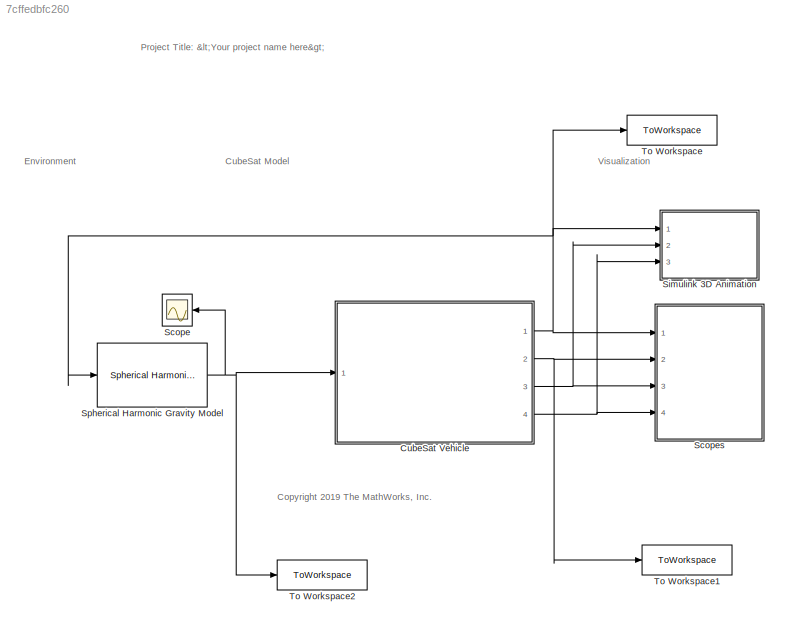
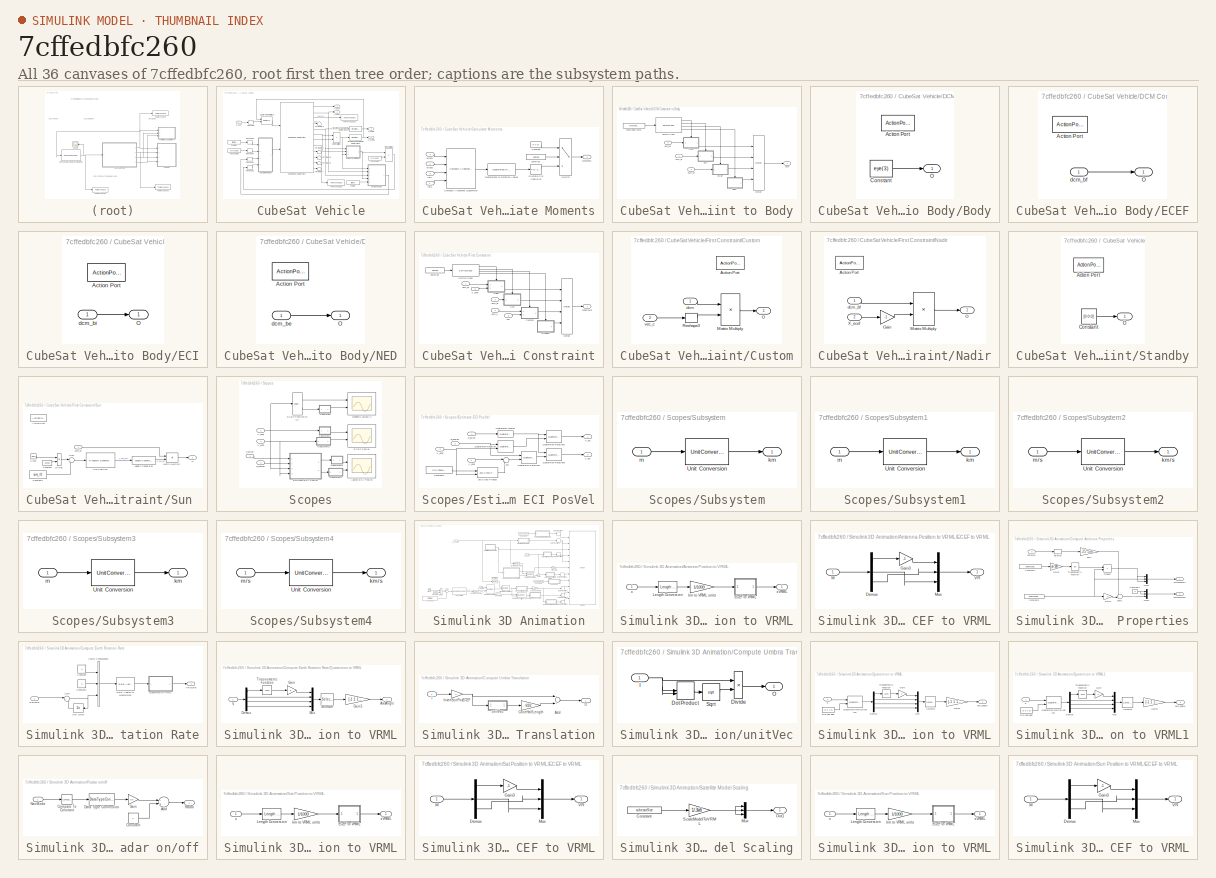
[diagram: thumbnail index - all 36 canvases of the model, root first then tree order]
MODEL slx_7cffedbfc260
KIND model
CONFIG AbsTol = auto
CONFIG EnableMultiTasking = off
CONFIG FixedStep = dT
CONFIG InitFcn = if strcmp(get_param([bdroot(gcs) '/Simulink 3D Animation'], 'enableVis'), 'on')\n    if ~builtin('license','checkout','Virtual_Reality_Toolbox')\n        error(message('aeroblks_cubesat:cubesat:licenseFailAnimTemplate'));\n    end\nend
CONFIG MaxStep = auto
CONFIG MinStep = auto
CONFIG PostLoadFcn = if builtin('license','test','Virtual_Reality_Toolbox')\n    set_param([bdroot(gcs) '/Simulink 3D Animation'], 'enableVis', 'on')\nelse\n    set_param([bdroot(gcs) '/Simulink 3D Animation'], 'enableVis', 'off')\nend
CONFIG RelTol = 1e-5
CONFIG SampleTimeConstraint = Unconstrained
CONFIG Solver = FixedStepAuto
CONFIG SolverName = FixedStepAuto
CONFIG StartTime = 0.0
CONFIG StopTime = 5
WORKSPACE source: MATLAB code (in-file) + mxarray member
WORKSPACE code: initialize6DOFSkyHogg;
WORKSPACE aeroCoeff: object (value not decoded)
WORKSPACE environment: EarthRefAlt (value not decoded)
WORKSPACE initCond: object (value not decoded)
WORKSPACE inputs0: object (value not decoded)
WORKSPACE states0: object (value not decoded)
WORKSPACE vehicle: object (value not decoded)
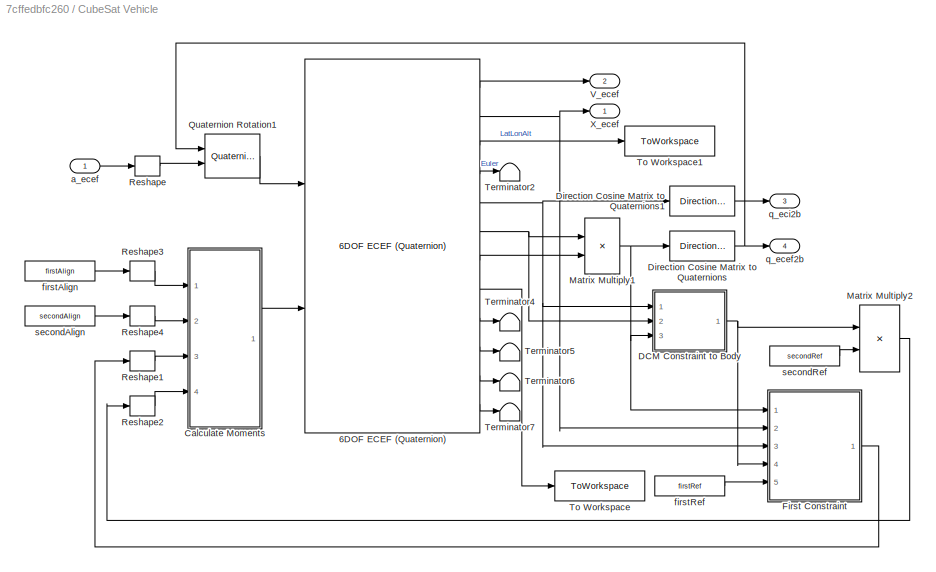
BLOCK [SubSystem] CubeSat Vehicle
  AncestorBlock = asbCubeSatBlockLib/CubeSat Vehicle
  AttributesFormatString = %<pointingMode>
  BlockKeywords = __PRM__SERIALIZED__DATA__:cube sat,cube sat vehicle,satellite,nanosat,nano sat,nanosatellite,nano satellite,pico sat,picosat,pico satellite,picosatellite,orbit propagator,orbit propagation,orbital propagator,orbital dynamics,astrodynamics,astro dynamics,spacecraft,space craft,space vehicle,spaceflight,space flight,low Earth orbit,low-Earth orbit,attitude control,kepler,keplerian elements,orbital e...<+45ch>
  Ports = [1, 4]
  RequestExecContextInheritance = off
BLOCK [Reference] CubeSat Vehicle/6DOF ECEF (Quaternion)  REF=aerolib6dof2/6DOF ECEF (Quaternion)
  Ports = [2, 12]
  SourceBlock = aerolib6dof2/6DOF ECEF (Quaternion)
  SourceProductBaseCode = AE
  SourceProductName = Aerospace Blockset
  SourceType = 6DOF EoM (ECEF)
BLOCK [SubSystem] CubeSat Vehicle/Calculate Moments
  Ports = [4, 1]
  RequestExecContextInheritance = off
BLOCK [Reference] CubeSat Vehicle/Calculate Moments/Compute Alignment Quaternion  REF=asbCubeSatBlockLib/Axes Transformations/Attitude Conversion/Compute Alignment Quaternion
  Ports = [4, 1]
  SourceBlock = asbCubeSatBlockLib/Axes Transformations/Attitude Conversion/Compute Alignment Quaternion
  SourceProductBaseCode = AERO_CUBESAT
  SourceProductName = Aerospace Blockset CubeSat Simulation Library
  SourceType = SubSystem
BLOCK [Constant] CubeSat Vehicle/Calculate Moments/Constant
  OutDataTypeStr = Inherit: Inherit via back propagation
  Value = [0 0 0]'
BLOCK [Reference] CubeSat Vehicle/Calculate Moments/Discrete PID Controller  REF=simulink/Continuous/PID Controller
  Ports = [1, 1]
  SourceBlock = simulink/Continuous/PID Controller
  SourceProductBaseCode = SL
  SourceProductName = Simulink
  SourceType = PID 1dof
BLOCK [Outport] CubeSat Vehicle/Calculate Moments/Moments
  IconDisplay = Port number
  VectorParamsAs1DForOutWhenUnconnected = off
BLOCK [Reference] CubeSat Vehicle/Calculate Moments/Quaternions to Rotation Angles  REF=sharedtransform/Quaternions to Rotation Angles
  AttributesFormatString = Rotation Order: %<rotationOrder>
  Ports = [1, 1]
  SourceBlock = sharedtransform/Quaternions to Rotation Angles
  SourceProductBaseCode = AE
  SourceProductName = Aerospace Blockset
  SourceType = Quat2Ang
BLOCK [Switch] CubeSat Vehicle/Calculate Moments/Switch
  Criteria = u2 > Threshold
  InputSameDT = off
  SaturateOnIntegerOverflow = off
  Threshold = 3
BLOCK [Inport] CubeSat Vehicle/Calculate Moments/align1
  IconDisplay = Port number
BLOCK [Inport] CubeSat Vehicle/Calculate Moments/align2
  IconDisplay = Port number
  Port = 2
BLOCK [Constant] CubeSat Vehicle/Calculate Moments/pointing
  OutDataTypeStr = Inherit: Inherit via back propagation
  Value = pointing
BLOCK [Inport] CubeSat Vehicle/Calculate Moments/ref1
  IconDisplay = Port number
  Port = 3
BLOCK [Inport] CubeSat Vehicle/Calculate Moments/ref2
  IconDisplay = Port number
  Port = 4
BLOCK [SubSystem] CubeSat Vehicle/DCM Constraint to Body
  Ports = [3, 1]
  RequestExecContextInheritance = off
BLOCK [SubSystem] CubeSat Vehicle/DCM Constraint to Body/Body
  Ports = [0, 1, 0, 0, 0, 0, 0, 1]
  RequestExecContextInheritance = off
  TreatAsAtomicUnit = on
BLOCK [ActionPort] CubeSat Vehicle/DCM Constraint to Body/Body/Action Port
  ActionPortLabel = case [ 4 ]:
BLOCK [Constant] CubeSat Vehicle/DCM Constraint to Body/Body/Constant
  Value = eye(3)
BLOCK [Outport] CubeSat Vehicle/DCM Constraint to Body/Body/O
  IconDisplay = Port number
  VectorParamsAs1DForOutWhenUnconnected = off
BLOCK [SubSystem] CubeSat Vehicle/DCM Constraint to Body/ECEF
  Ports = [1, 1, 0, 0, 0, 0, 0, 1]
  RequestExecContextInheritance = off
  TreatAsAtomicUnit = on
BLOCK [ActionPort] CubeSat Vehicle/DCM Constraint to Body/ECEF/Action Port
  ActionPortLabel = case [ 3 ]:
BLOCK [Outport] CubeSat Vehicle/DCM Constraint to Body/ECEF/O
  IconDisplay = Port number
  VectorParamsAs1DForOutWhenUnconnected = off
BLOCK [Inport] CubeSat Vehicle/DCM Constraint to Body/ECEF/dcm_bf
  IconDisplay = Port number
BLOCK [SubSystem] CubeSat Vehicle/DCM Constraint to Body/ECI
  Ports = [1, 1, 0, 0, 0, 0, 0, 1]
  RequestExecContextInheritance = off
  TreatAsAtomicUnit = on
BLOCK [ActionPort] CubeSat Vehicle/DCM Constraint to Body/ECI/Action Port
  ActionPortLabel = case [ 2 ]:
BLOCK [Outport] CubeSat Vehicle/DCM Constraint to Body/ECI/O
  IconDisplay = Port number
  VectorParamsAs1DForOutWhenUnconnected = off
BLOCK [Inport] CubeSat Vehicle/DCM Constraint to Body/ECI/dcm_bi
  IconDisplay = Port number
BLOCK [Merge] CubeSat Vehicle/DCM Constraint to Body/Merge
  Inputs = 4
  Ports = [4, 1]
BLOCK [SubSystem] CubeSat Vehicle/DCM Constraint to Body/NED
  Ports = [1, 1, 0, 0, 0, 0, 0, 1]
  RequestExecContextInheritance = off
  TreatAsAtomicUnit = on
BLOCK [ActionPort] CubeSat Vehicle/DCM Constraint to Body/NED/Action Port
  ActionPortLabel = case [ 1 ]:
BLOCK [Outport] CubeSat Vehicle/DCM Constraint to Body/NED/O
  IconDisplay = Port number
  VectorParamsAs1DForOutWhenUnconnected = off
BLOCK [Inport] CubeSat Vehicle/DCM Constraint to Body/NED/dcm_be
  IconDisplay = Port number
BLOCK [SwitchCase] CubeSat Vehicle/DCM Constraint to Body/Switch Case
  CaseConditions = {1, 2, 3, 4}
  Ports = [1, 4]
  ShowDefaultCase = off
BLOCK [Constant] CubeSat Vehicle/DCM Constraint to Body/constraintCoord
  OutDataTypeStr = Inherit: Inherit via back propagation
  Value = constraintAxes
BLOCK [Inport] CubeSat Vehicle/DCM Constraint to Body/dcb_be
  IconDisplay = Port number
  Port = 2
BLOCK [Outport] CubeSat Vehicle/DCM Constraint to Body/dcm
  IconDisplay = Port number
  VectorParamsAs1DForOutWhenUnconnected = off
BLOCK [Inport] CubeSat Vehicle/DCM Constraint to Body/dcm_bf
  IconDisplay = Port number
  Port = 3
BLOCK [Inport] CubeSat Vehicle/DCM Constraint to Body/dcm_bi
  IconDisplay = Port number
BLOCK [Reference] CubeSat Vehicle/Direction Cosine Matrix to Quaternions  REF=sharedtransform/Direction Cosine Matrix 
to Quaternions
  Ports = [1, 1]
  SourceBlock = sharedtransform/Direction Cosine Matrix \nto Quaternions
  SourceProductBaseCode = AE
  SourceProductName = Aerospace Blockset
  SourceType = DCM2Quaternion
BLOCK [Reference] CubeSat Vehicle/Direction Cosine Matrix to Quaternions1  REF=sharedtransform/Direction Cosine Matrix 
to Quaternions
  Ports = [1, 1]
  SourceBlock = sharedtransform/Direction Cosine Matrix \nto Quaternions
  SourceProductBaseCode = AE
  SourceProductName = Aerospace Blockset
  SourceType = DCM2Quaternion
BLOCK [SubSystem] CubeSat Vehicle/First Constraint
  Ports = [5, 1]
  RequestExecContextInheritance = off
BLOCK [SubSystem] CubeSat Vehicle/First Constraint/Custom
  Ports = [2, 1, 0, 0, 0, 0, 0, 1]
  RequestExecContextInheritance = off
  TreatAsAtomicUnit = on
BLOCK [ActionPort] CubeSat Vehicle/First Constraint/Custom/Action Port
  ActionPortLabel = case [ 3 ]:
BLOCK [Product] CubeSat Vehicle/First Constraint/Custom/Matrix Multiply
  InputSameDT = off
  Multiplication = Matrix(*)
  OutDataTypeStr = Inherit: Inherit via internal rule
  Ports = [2, 1]
  RndMeth = Floor
  SaturateOnIntegerOverflow = off
BLOCK [Outport] CubeSat Vehicle/First Constraint/Custom/O
  IconDisplay = Port number
  VectorParamsAs1DForOutWhenUnconnected = off
BLOCK [Reshape] CubeSat Vehicle/First Constraint/Custom/Reshape3
  Ports = [1, 1]
BLOCK [Inport] CubeSat Vehicle/First Constraint/Custom/dcm
  IconDisplay = Port number
BLOCK [Inport] CubeSat Vehicle/First Constraint/Custom/vec_c
  IconDisplay = Port number
  Port = 2
BLOCK [Merge] CubeSat Vehicle/First Constraint/Merge
  Inputs = 4
  Ports = [4, 1]
BLOCK [SubSystem] CubeSat Vehicle/First Constraint/Nadir
  Ports = [2, 1, 0, 0, 0, 0, 0, 1]
  RequestExecContextInheritance = off
  TreatAsAtomicUnit = on
BLOCK [ActionPort] CubeSat Vehicle/First Constraint/Nadir/Action Port
  ActionPortLabel = case [ 1 ]:
BLOCK [Gain] CubeSat Vehicle/First Constraint/Nadir/Gain
  Gain = -1
  OutDataTypeStr = Inherit: Inherit via internal rule
  ParamDataTypeStr = Inherit: Inherit via internal rule
  SaturateOnIntegerOverflow = off
BLOCK [Product] CubeSat Vehicle/First Constraint/Nadir/Matrix Multiply
  InputSameDT = off
  Multiplication = Matrix(*)
  OutDataTypeStr = Inherit: Inherit via internal rule
  Ports = [2, 1]
  RndMeth = Floor
  SaturateOnIntegerOverflow = off
BLOCK [Outport] CubeSat Vehicle/First Constraint/Nadir/O
  IconDisplay = Port number
  VectorParamsAs1DForOutWhenUnconnected = off
BLOCK [Inport] CubeSat Vehicle/First Constraint/Nadir/X_ecef
  IconDisplay = Port number
  Port = 2
BLOCK [Inport] CubeSat Vehicle/First Constraint/Nadir/dcm_bf
  IconDisplay = Port number
BLOCK [SubSystem] CubeSat Vehicle/First Constraint/Standby
  Ports = [0, 1, 0, 0, 0, 0, 0, 1]
  RequestExecContextInheritance = off
  TreatAsAtomicUnit = on
BLOCK [ActionPort] CubeSat Vehicle/First Constraint/Standby/Action Port
  ActionPortLabel = default:
BLOCK [Constant] CubeSat Vehicle/First Constraint/Standby/Constant
  OutDataTypeStr = Inherit: Inherit via back propagation
  Value = [0 0 0]'
BLOCK [Outport] CubeSat Vehicle/First Constraint/Standby/O
  IconDisplay = Port number
  VectorParamsAs1DForOutWhenUnconnected = off
BLOCK [SubSystem] CubeSat Vehicle/First Constraint/Sun 
  Ports = [1, 1, 0, 0, 0, 0, 0, 1]
  RequestExecContextInheritance = off
  TreatAsAtomicUnit = on
BLOCK [ActionPort] CubeSat Vehicle/First Constraint/Sun /Action Port
  ActionPortLabel = case [ 2 ]:
BLOCK [Clock] CubeSat Vehicle/First Constraint/Sun /Clock
BLOCK [Constant] CubeSat Vehicle/First Constraint/Sun /Constant
  Value = 86400
BLOCK [Constant] CubeSat Vehicle/First Constraint/Sun /Constant1
  Value = sim_t0
BLOCK [Product] CubeSat Vehicle/First Constraint/Sun /Divide
  InputSameDT = off
  Inputs = */
  OutDataTypeStr = Inherit: Inherit via internal rule
  Ports = [2, 1]
  RndMeth = Floor
  SaturateOnIntegerOverflow = off
BLOCK [Reference] CubeSat Vehicle/First Constraint/Sun /Length Conversion  REF=aerolibconvert2/Length Conversion
  Ports = [1, 1]
  SourceBlock = aerolibconvert2/Length Conversion
  SourceProductBaseCode = AE
  SourceProductName = Aerospace Blockset
  SourceType = Length Conversion
BLOCK [Product] CubeSat Vehicle/First Constraint/Sun /Matrix Multiply
  InputSameDT = off
  Multiplication = Matrix(*)
  OutDataTypeStr = Inherit: Inherit via internal rule
  Ports = [2, 1]
  RndMeth = Floor
  SaturateOnIntegerOverflow = off
BLOCK [Outport] CubeSat Vehicle/First Constraint/Sun /O
  IconDisplay = Port number
  VectorParamsAs1DForOutWhenUnconnected = off
BLOCK [Sum] CubeSat Vehicle/First Constraint/Sun /Sum
  IconShape = round
  InputSameDT = off
  Inputs = |++
  OutDataTypeStr = Inherit: Inherit via internal rule
  Ports = [2, 1]
  SaturateOnIntegerOverflow = off
BLOCK [Reference] CubeSat Vehicle/First Constraint/Sun /Sun Position  REF=aerolibcelestial/Planetary Ephemeris
  Ports = [1, 1]
  SourceBlock = aerolibcelestial/Planetary Ephemeris
  SourceProductBaseCode = AE
  SourceProductName = Aerospace Blockset
  SourceType = PlanetaryEphemeris
BLOCK [Inport] CubeSat Vehicle/First Constraint/Sun /dcm_bi
  IconDisplay = Port number
BLOCK [SwitchCase] CubeSat Vehicle/First Constraint/Switch Case
  CaseConditions = {1, 2, 3}
  Ports = [1, 4]
BLOCK [Inport] CubeSat Vehicle/First Constraint/X_ecef
  IconDisplay = Port number
  Port = 2
BLOCK [Outport] CubeSat Vehicle/First Constraint/constraint
  IconDisplay = Port number
  VectorParamsAs1DForOutWhenUnconnected = off
BLOCK [Inport] CubeSat Vehicle/First Constraint/dcm_bf
  IconDisplay = Port number
BLOCK [Inport] CubeSat Vehicle/First Constraint/dcm_bi
  IconDisplay = Port number
  Port = 3
BLOCK [Inport] CubeSat Vehicle/First Constraint/dcm_c
  IconDisplay = Port number
  Port = 4
BLOCK [Constant] CubeSat Vehicle/First Constraint/pointing
  OutDataTypeStr = Inherit: Inherit via back propagation
  Value = pointing
BLOCK [Inport] CubeSat Vehicle/First Constraint/vec
  IconDisplay = Port number
  Port = 5
BLOCK [Product] CubeSat Vehicle/Matrix Multiply1
  InputSameDT = off
  Multiplication = Matrix(*)
  OutDataTypeStr = Inherit: Inherit via internal rule
  Ports = [2, 1]
  RndMeth = Floor
  SaturateOnIntegerOverflow = off
BLOCK [Product] CubeSat Vehicle/Matrix Multiply2
  InputSameDT = off
  Multiplication = Matrix(*)
  OutDataTypeStr = Inherit: Inherit via internal rule
  Ports = [2, 1]
  RndMeth = Floor
  SaturateOnIntegerOverflow = off
BLOCK [Reference] CubeSat Vehicle/Quaternion Rotation1  REF=aerolibutil/Quaternion
Rotation
  Ports = [2, 1]
  SourceBlock = aerolibutil/Quaternion\nRotation
  SourceProductBaseCode = AE
  SourceProductName = Aerospace Blockset
  SourceType = Quaternion Rotation
BLOCK [Reshape] CubeSat Vehicle/Reshape
  Ports = [1, 1]
BLOCK [Reshape] CubeSat Vehicle/Reshape1
  Ports = [1, 1]
BLOCK [Reshape] CubeSat Vehicle/Reshape2
  Ports = [1, 1]
BLOCK [Reshape] CubeSat Vehicle/Reshape3
  Ports = [1, 1]
BLOCK [Reshape] CubeSat Vehicle/Reshape4
  Ports = [1, 1]
BLOCK [Terminator] CubeSat Vehicle/Terminator2
BLOCK [Terminator] CubeSat Vehicle/Terminator4
BLOCK [Terminator] CubeSat Vehicle/Terminator5
BLOCK [Terminator] CubeSat Vehicle/Terminator6
BLOCK [Terminator] CubeSat Vehicle/Terminator7
BLOCK [ToWorkspace] CubeSat Vehicle/To Workspace
  FixptAsFi = on
  MaxDataPoints = inf
  Ports = [1]
  SampleTime = -1
  VariableName = v_b
BLOCK [ToWorkspace] CubeSat Vehicle/To Workspace1
  FixptAsFi = on
  MaxDataPoints = inf
  Ports = [1]
  SampleTime = -1
  VariableName = lla
BLOCK [Outport] CubeSat Vehicle/V_ecef
  IconDisplay = Port number
  Port = 2
  VectorParamsAs1DForOutWhenUnconnected = off
BLOCK [Outport] CubeSat Vehicle/X_ecef
  IconDisplay = Port number
  VectorParamsAs1DForOutWhenUnconnected = off
BLOCK [Inport] CubeSat Vehicle/a_ecef
  IconDisplay = Port number
BLOCK [Constant] CubeSat Vehicle/firstAlign
  OutDataTypeStr = Inherit: Inherit via back propagation
  Value = firstAlign
BLOCK [Constant] CubeSat Vehicle/firstRef
  OutDataTypeStr = Inherit: Inherit via back propagation
  Value = firstRef
BLOCK [Outport] CubeSat Vehicle/q_ecef2b
  IconDisplay = Port number
  Port = 4
  VectorParamsAs1DForOutWhenUnconnected = off
BLOCK [Outport] CubeSat Vehicle/q_eci2b
  IconDisplay = Port number
  Port = 3
  VectorParamsAs1DForOutWhenUnconnected = off
BLOCK [Constant] CubeSat Vehicle/secondAlign
  OutDataTypeStr = Inherit: Inherit via back propagation
  Value = secondAlign
BLOCK [Constant] CubeSat Vehicle/secondRef
  OutDataTypeStr = Inherit: Inherit via back propagation
  Value = secondRef
BLOCK [Scope] Scope
  Floating = off
  NumInputPorts = 1
  Ports = [1]
  ScopeSpecificationString = Simulink.scopes.TimeScopeBlockCfg('CurrentConfiguration', extmgr.ConfigurationSet(extmgr.Configuration('Core','General UI',true),extmgr.Configuration('Core','Source UI',true),extmgr.Configuration('Sources','WiredSimulink',true,'DataLoggingVariableName','ScopeData1'),extmgr.Configuration('Visuals','Time Domain',true,'SerializedDisplays',{struct('MinYLimReal','-8.35756','MaxYLimReal','-1.31336','YLa...<+1567ch>
BLOCK [SubSystem] Scopes
  Ports = [4]
  RequestExecContextInheritance = off
  VariantControl = visOff
BLOCK [Scope] Scopes/Approx ECI PosVel
  Floating = off
  NumInputPorts = 2
  Ports = [2]
  ScopeSpecificationString = Simulink.scopes.TimeScopeBlockCfg('CurrentConfiguration', extmgr.ConfigurationSet(extmgr.Configuration('Core','General UI',true),extmgr.Configuration('Core','Source UI',true),extmgr.Configuration('Sources','WiredSimulink',true,'DataLoggingVariableName','ScopeData1'),extmgr.Configuration('Visuals','Time Domain',true,'SerializedDisplays',{struct('MinYLimReal','-8477.77229','MaxYLimReal','8481.05539'...<+2040ch>
BLOCK [Scope] Scopes/ECEF PosVel
  Floating = off
  NumInputPorts = 2
  Ports = [2]
  ScopeSpecificationString = Simulink.scopes.TimeScopeBlockCfg('CurrentConfiguration', extmgr.ConfigurationSet(extmgr.Configuration('Core','General UI',true),extmgr.Configuration('Core','Source UI',true),extmgr.Configuration('Sources','WiredSimulink',true,'DataLoggingVariableName','ScopeData2'),extmgr.Configuration('Visuals','Time Domain',true,'SerializedDisplays',{struct('MinYLimReal','-8476.94488','MaxYLimReal','8445.06709'...<+2048ch>
BLOCK [Reference] Scopes/ECEF Position to LLA  REF=aerolibtransform2/ECEF Position to LLA
  Ports = [1, 2]
  SourceBlock = aerolibtransform2/ECEF Position to LLA
  SourceProductBaseCode = AE
  SourceProductName = Aerospace Blockset
  SourceType = ECEF to LLA
BLOCK [SubSystem] Scopes/Estimate ECI PosVel
  Ports = [4, 2]
  RequestExecContextInheritance = off
BLOCK [Reference] Scopes/Estimate ECI PosVel/3x3 Cross Product  REF=sharedutil/3x3 Cross Product
  Ports = [2, 1]
  SourceBlock = sharedutil/3x3 Cross Product
  SourceProductBaseCode = AE
  SourceProductName = Aerospace Blockset
  SourceType = CrossProduct
BLOCK [Constant] Scopes/Estimate ECI PosVel/Constant2
  Value = [0 0 7292115e-11]
BLOCK [Reference] Scopes/Estimate ECI PosVel/Quaternion Inverse  REF=aerolibutil/Quaternion
Inverse
  Ports = [1, 1]
  SourceBlock = aerolibutil/Quaternion\nInverse
  SourceProductBaseCode = AE
  SourceProductName = Aerospace Blockset
  SourceType = Quaternion Inverse
BLOCK [Reference] Scopes/Estimate ECI PosVel/Quaternion Rotation  REF=aerolibutil/Quaternion
Rotation
  Ports = [2, 1]
  SourceBlock = aerolibutil/Quaternion\nRotation
  SourceProductBaseCode = AE
  SourceProductName = Aerospace Blockset
  SourceType = Quaternion Rotation
BLOCK [Reference] Scopes/Estimate ECI PosVel/Quaternion Rotation1  REF=aerolibutil/Quaternion
Rotation
  Ports = [2, 1]
  SourceBlock = aerolibutil/Quaternion\nRotation
  SourceProductBaseCode = AE
  SourceProductName = Aerospace Blockset
  SourceType = Quaternion Rotation
BLOCK [Reference] Scopes/Estimate ECI PosVel/Quaternion Rotation2  REF=aerolibutil/Quaternion
Rotation
  Ports = [2, 1]
  SourceBlock = aerolibutil/Quaternion\nRotation
  SourceProductBaseCode = AE
  SourceProductName = Aerospace Blockset
  SourceType = Quaternion Rotation
BLOCK [Reference] Scopes/Estimate ECI PosVel/Quaternion Rotation3  REF=aerolibutil/Quaternion
Rotation
  Ports = [2, 1]
  SourceBlock = aerolibutil/Quaternion\nRotation
  SourceProductBaseCode = AE
  SourceProductName = Aerospace Blockset
  SourceType = Quaternion Rotation
BLOCK [Sum] Scopes/Estimate ECI PosVel/Sum
  IconShape = round
  InputSameDT = off
  Inputs = |++
  OutDataTypeStr = Inherit: Inherit via internal rule
  Ports = [2, 1]
  SaturateOnIntegerOverflow = off
BLOCK [Inport] Scopes/Estimate ECI PosVel/V_ecef
  IconDisplay = Port number
  Port = 4
BLOCK [Outport] Scopes/Estimate ECI PosVel/V_eci
  IconDisplay = Port number
  Port = 2
  VectorParamsAs1DForOutWhenUnconnected = off
BLOCK [Inport] Scopes/Estimate ECI PosVel/X_ecef
  IconDisplay = Port number
  Port = 3
BLOCK [Outport] Scopes/Estimate ECI PosVel/X_eci
  IconDisplay = Port number
  VectorParamsAs1DForOutWhenUnconnected = off
BLOCK [Inport] Scopes/Estimate ECI PosVel/q_ecef2b
  IconDisplay = Port number
  Port = 2
BLOCK [Inport] Scopes/Estimate ECI PosVel/q_eci2b
  IconDisplay = Port number
BLOCK [Scope] Scopes/Geodetic LatLonAlt
  Floating = off
  NumInputPorts = 2
  Ports = [2]
  ScopeSpecificationString = Simulink.scopes.TimeScopeBlockCfg('CurrentConfiguration', extmgr.ConfigurationSet(extmgr.Configuration('Core','General UI',true),extmgr.Configuration('Core','Source UI',true),extmgr.Configuration('Sources','WiredSimulink',true),extmgr.Configuration('Visuals','Time Domain',true,'SerializedDisplays',{struct('MinYLimReal','-224.99627','MaxYLimReal','224.98953','YLabelReal','\mu \iota (deg)','MinYLimM...<+1990ch>
BLOCK [SubSystem] Scopes/Subsystem
  Ports = [1, 1]
  RequestExecContextInheritance = off
BLOCK [UnitConversion] Scopes/Subsystem/Unit Conversion
BLOCK [Outport] Scopes/Subsystem/km
  IconDisplay = Port number
  Unit = km
  VectorParamsAs1DForOutWhenUnconnected = off
BLOCK [Inport] Scopes/Subsystem/m
  IconDisplay = Port number
  Unit = m
BLOCK [SubSystem] Scopes/Subsystem1
  Ports = [1, 1]
  RequestExecContextInheritance = off
BLOCK [UnitConversion] Scopes/Subsystem1/Unit Conversion
BLOCK [Outport] Scopes/Subsystem1/km
  IconDisplay = Port number
  Unit = km
  VectorParamsAs1DForOutWhenUnconnected = off
BLOCK [Inport] Scopes/Subsystem1/m
  IconDisplay = Port number
  Unit = m
BLOCK [SubSystem] Scopes/Subsystem2
  Ports = [1, 1]
  RequestExecContextInheritance = off
BLOCK [UnitConversion] Scopes/Subsystem2/Unit Conversion
BLOCK [Outport] Scopes/Subsystem2/km//s
  IconDisplay = Port number
  Unit = km/s
  VectorParamsAs1DForOutWhenUnconnected = off
BLOCK [Inport] Scopes/Subsystem2/m//s
  IconDisplay = Port number
  Unit = m/s
BLOCK [SubSystem] Scopes/Subsystem3
  Ports = [1, 1]
  RequestExecContextInheritance = off
BLOCK [UnitConversion] Scopes/Subsystem3/Unit Conversion
BLOCK [Outport] Scopes/Subsystem3/km
  IconDisplay = Port number
  Unit = km
  VectorParamsAs1DForOutWhenUnconnected = off
BLOCK [Inport] Scopes/Subsystem3/m
  IconDisplay = Port number
  Unit = m
BLOCK [SubSystem] Scopes/Subsystem4
  Ports = [1, 1]
  RequestExecContextInheritance = off
BLOCK [UnitConversion] Scopes/Subsystem4/Unit Conversion
BLOCK [Outport] Scopes/Subsystem4/km//s
  IconDisplay = Port number
  Unit = km/s
  VectorParamsAs1DForOutWhenUnconnected = off
BLOCK [Inport] Scopes/Subsystem4/m//s
  IconDisplay = Port number
  Unit = m/s
BLOCK [Inport] Scopes/V_ecef
  IconDisplay = Port number
  Port = 2
BLOCK [Inport] Scopes/X_ecef
  IconDisplay = Port number
BLOCK [Inport] Scopes/q_ecef2b
  IconDisplay = Port number
  Port = 4
BLOCK [Inport] Scopes/q_eci2b
  IconDisplay = Port number
  Port = 3
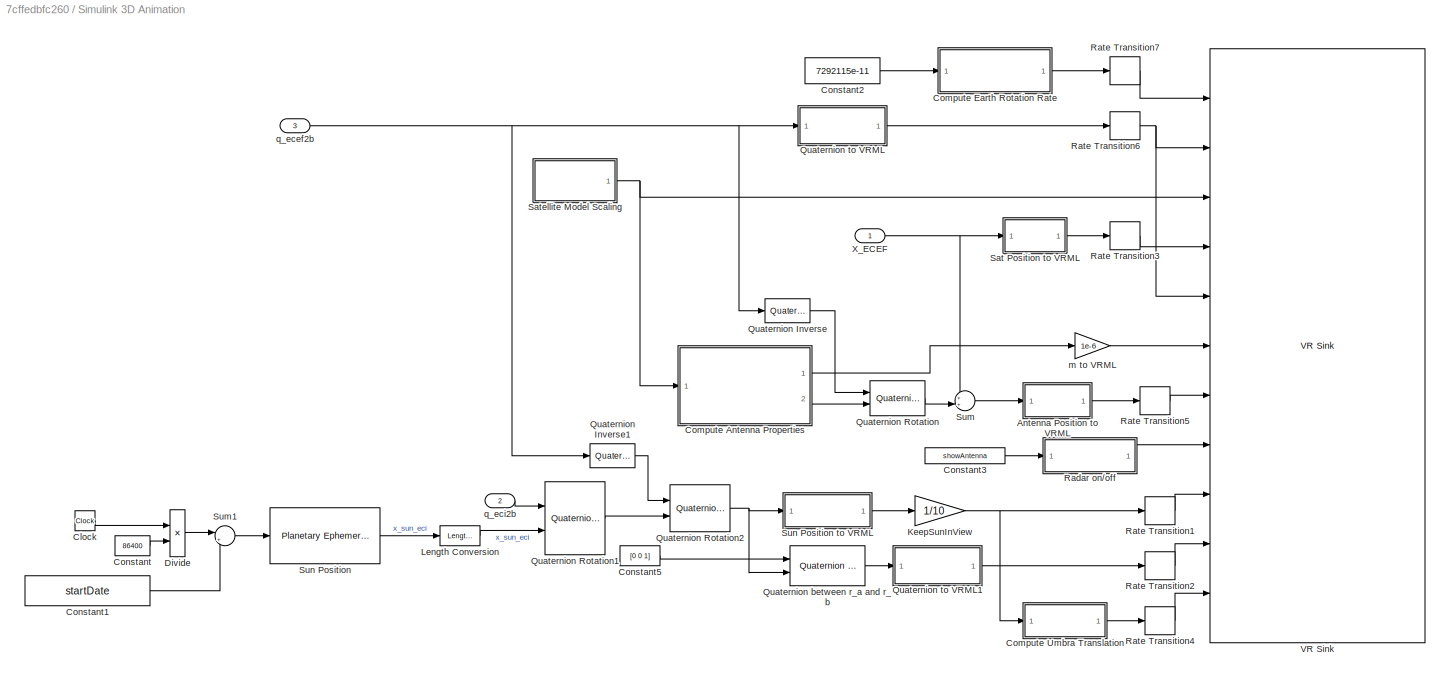
BLOCK [SubSystem] Simulink 3D Animation
  OpenFcn = if ~builtin('license','test','virtual_reality_toolbox')\n    set_param(gcb, 'enableVis', 'off');\nend\nopen_system(gcb,'mask');
  Ports = [3]
  RequestExecContextInheritance = off
BLOCK [SubSystem] Simulink 3D Animation/Antenna Position to VRML
  Ports = [1, 1]
  RequestExecContextInheritance = off
BLOCK [SubSystem] Simulink 3D Animation/Antenna Position to VRML/ECEF to VRML
  Ports = [1, 1]
  RequestExecContextInheritance = off
BLOCK [Demux] Simulink 3D Animation/Antenna Position to VRML/ECEF to VRML/Demux
  DisplayOption = bar
  Outputs = 3
  Ports = [1, 3]
BLOCK [Gain] Simulink 3D Animation/Antenna Position to VRML/ECEF to VRML/Gain3
  Gain = -1
  OutDataTypeStr = Inherit: Inherit via internal rule
  ParamDataTypeStr = Inherit: Inherit via internal rule
  SaturateOnIntegerOverflow = off
BLOCK [Inport] Simulink 3D Animation/Antenna Position to VRML/ECEF to VRML/M
  IconDisplay = Port number
  PortDimensions = 3
BLOCK [Mux] Simulink 3D Animation/Antenna Position to VRML/ECEF to VRML/Mux
  DisplayOption = bar
  Inputs = 3
  Ports = [3, 1]
BLOCK [Outport] Simulink 3D Animation/Antenna Position to VRML/ECEF to VRML/VR
  IconDisplay = Port number
  PortDimensions = 3
  VectorParamsAs1DForOutWhenUnconnected = off
BLOCK [Reference] Simulink 3D Animation/Antenna Position to VRML/Length Conversion  REF=aerolibconvert2/Length Conversion
  Ports = [1, 1]
  SourceBlock = aerolibconvert2/Length Conversion
  SourceProductBaseCode = AE
  SourceProductName = Aerospace Blockset
  SourceType = Length Conversion
BLOCK [Gain] Simulink 3D Animation/Antenna Position to VRML/km to VRML units
  Gain = 1/1000
  OutDataTypeStr = Inherit: Inherit via internal rule
  ParamDataTypeStr = Inherit: Inherit via internal rule
  SaturateOnIntegerOverflow = off
BLOCK [Inport] Simulink 3D Animation/Antenna Position to VRML/x
  IconDisplay = Port number
BLOCK [Outport] Simulink 3D Animation/Antenna Position to VRML/xVRML
  IconDisplay = Port number
  VectorParamsAs1DForOutWhenUnconnected = off
BLOCK [Clock] Simulink 3D Animation/Clock
BLOCK [SubSystem] Simulink 3D Animation/Compute Antenna Properties
  Ports = [1, 2]
  RequestExecContextInheritance = off
BLOCK [Outport] Simulink 3D Animation/Compute Antenna Properties/AntennaScale
  IconDisplay = Port number
  VectorParamsAs1DForOutWhenUnconnected = off
BLOCK [Outport] Simulink 3D Animation/Compute Antenna Properties/AntennaTrans
  IconDisplay = Port number
  Port = 2
  VectorParamsAs1DForOutWhenUnconnected = off
BLOCK [Constant] Simulink 3D Animation/Compute Antenna Properties/Constant1
  Value = antennaHalfAngle
BLOCK [Constant] Simulink 3D Animation/Compute Antenna Properties/Constant2
  Value = antennaHeight
BLOCK [Constant] Simulink 3D Animation/Compute Antenna Properties/Constant4
  Value = 0
BLOCK [Gain] Simulink 3D Animation/Compute Antenna Properties/Gain1
  Gain = .5
  OutDataTypeStr = Inherit: Inherit via internal rule
  ParamDataTypeStr = Inherit: Inherit via internal rule
  SaturateOnIntegerOverflow = off
BLOCK [Gain] Simulink 3D Animation/Compute Antenna Properties/Gain2
  Gain = pi/180
  OutDataTypeStr = Inherit: Inherit via internal rule
  ParamDataTypeStr = Inherit: Inherit via internal rule
  SaturateOnIntegerOverflow = off
BLOCK [Mux] Simulink 3D Animation/Compute Antenna Properties/Mux1
  DisplayOption = bar
  Inputs = 3
  Ports = [3, 1]
BLOCK [Mux] Simulink 3D Animation/Compute Antenna Properties/Mux2
  DisplayOption = bar
  Inputs = 3
  Ports = [3, 1]
BLOCK [Product] Simulink 3D Animation/Compute Antenna Properties/Product
  InputSameDT = off
  OutDataTypeStr = Inherit: Inherit via internal rule
  Ports = [2, 1]
  RndMeth = Floor
  SaturateOnIntegerOverflow = off
BLOCK [Inport] Simulink 3D Animation/Compute Antenna Properties/SatScale
  IconDisplay = Port number
BLOCK [Selector] Simulink 3D Animation/Compute Antenna Properties/Selector
  IndexOptions = Index vector (dialog)
  Indices = 1
  InputPortWidth = 3
  OutputSizes = 1
  Ports = [1, 1]
BLOCK [Sum] Simulink 3D Animation/Compute Antenna Properties/Sum1
  IconShape = round
  InputSameDT = off
  Inputs = ++|
  OutDataTypeStr = Inherit: Inherit via internal rule
  Ports = [2, 1]
  SaturateOnIntegerOverflow = off
BLOCK [Trigonometry] Simulink 3D Animation/Compute Antenna Properties/Trigonometric Function
  Operator = tan
  Ports = [1, 1]
BLOCK [Gain] Simulink 3D Animation/Compute Antenna Properties/gain
  Gain = .25*1e6
  OutDataTypeStr = Inherit: Inherit via internal rule
  ParamDataTypeStr = Inherit: Inherit via internal rule
  SaturateOnIntegerOverflow = off
BLOCK [SubSystem] Simulink 3D Animation/Compute Earth Rotation Rate
  Ports = [1, 1]
  RequestExecContextInheritance = off
BLOCK [Constant] Simulink 3D Animation/Compute Earth Rotation Rate/Constant
  Value = 0
BLOCK [Constant] Simulink 3D Animation/Compute Earth Rotation Rate/Constant1
  Value = 0
BLOCK [Inport] Simulink 3D Animation/Compute Earth Rotation Rate/EarthRot
  IconDisplay = Port number
BLOCK [Reference] Simulink 3D Animation/Compute Earth Rotation Rate/Euler Angles to Quaternions  REF=aerolibobsolete/Euler Angles to Quaternions
  Ports = [1, 1]
  SourceBlock = aerolibobsolete/Euler Angles to Quaternions
  SourceProductBaseCode = AE
  SourceProductName = Aerospace Blockset
  SourceType = Euler2Quaternion
BLOCK [SubSystem] Simulink 3D Animation/Compute Earth Rotation Rate/Quaternion to VRML
  Ports = [1, 1]
  RequestExecContextInheritance = off
BLOCK [Outport] Simulink 3D Animation/Compute Earth Rotation Rate/Quaternion to VRML/AxisAngle
  IconDisplay = Port number
  VectorParamsAs1DForOutWhenUnconnected = off
BLOCK [Demux] Simulink 3D Animation/Compute Earth Rotation Rate/Quaternion to VRML/Demux
  DisplayOption = bar
  Ports = [1, 4]
BLOCK [Gain] Simulink 3D Animation/Compute Earth Rotation Rate/Quaternion to VRML/Gain
  Gain = 2
  OutDataTypeStr = Inherit: Inherit via internal rule
  ParamDataTypeStr = Inherit: Inherit via internal rule
  SaturateOnIntegerOverflow = off
BLOCK [Gain] Simulink 3D Animation/Compute Earth Rotation Rate/Quaternion to VRML/Gain3
  Gain = [-1 1 1 1]
  OutDataTypeStr = Inherit: Inherit via internal rule
  ParamDataTypeStr = Inherit: Inherit via internal rule
  SaturateOnIntegerOverflow = off
BLOCK [Mux] Simulink 3D Animation/Compute Earth Rotation Rate/Quaternion to VRML/Mux
  DisplayOption = bar
  Ports = [4, 1]
BLOCK [Selector] Simulink 3D Animation/Compute Earth Rotation Rate/Quaternion to VRML/Selector
  IndexOptions = Index vector (dialog)
  Indices = [2 4 3 1]
  InputPortWidth = 4
  OutputSizes = 1
  Ports = [1, 1]
BLOCK [Trigonometry] Simulink 3D Animation/Compute Earth Rotation Rate/Quaternion to VRML/Trigonometric Function
  Operator = acos
  Ports = [1, 1]
BLOCK [Inport] Simulink 3D Animation/Compute Earth Rotation Rate/Quaternion to VRML/q
  IconDisplay = Port number
BLOCK [Sum] Simulink 3D Animation/Compute Earth Rotation Rate/Sum
  IconShape = round
  InputSameDT = off
  Inputs = |++
  OutDataTypeStr = Inherit: Inherit via internal rule
  Ports = [2, 1]
  SaturateOnIntegerOverflow = off
BLOCK [UnitDelay] Simulink 3D Animation/Compute Earth Rotation Rate/Unit Delay
  HasFrameUpgradeWarning = on
  SampleTime = -1
BLOCK [Outport] Simulink 3D Animation/Compute Earth Rotation Rate/VRMLRot
  IconDisplay = Port number
  VectorParamsAs1DForOutWhenUnconnected = off
BLOCK [Concatenate] Simulink 3D Animation/Compute Earth Rotation Rate/Vector Concatenate
  NumInputs = 3
  Ports = [3, 1]
BLOCK [SubSystem] Simulink 3D Animation/Compute Umbra Translation
  Ports = [1, 1]
  RequestExecContextInheritance = off
BLOCK [Sum] Simulink 3D Animation/Compute Umbra Translation/Add
  InputSameDT = off
  OutDataTypeStr = Inherit: Inherit via internal rule
  Ports = [2, 1]
  SaturateOnIntegerOverflow = off
BLOCK [Gain] Simulink 3D Animation/Compute Umbra Translation/ConeHalfLength
  Gain = 692
  OutDataTypeStr = Inherit: Inherit via internal rule
  ParamDataTypeStr = Inherit: Inherit via internal rule
  SaturateOnIntegerOverflow = off
BLOCK [Inport] Simulink 3D Animation/Compute Umbra Translation/I
  IconDisplay = Port number
BLOCK [Gain] Simulink 3D Animation/Compute Umbra Translation/InvertSunPosECEF
  Gain = -1
  OutDataTypeStr = Inherit: Inherit via internal rule
  ParamDataTypeStr = Inherit: Inherit via internal rule
  SaturateOnIntegerOverflow = off
BLOCK [Outport] Simulink 3D Animation/Compute Umbra Translation/O
  IconDisplay = Port number
  VectorParamsAs1DForOutWhenUnconnected = off
BLOCK [SubSystem] Simulink 3D Animation/Compute Umbra Translation/unitVec
  Ports = [1, 1]
  RequestExecContextInheritance = off
BLOCK [Product] Simulink 3D Animation/Compute Umbra Translation/unitVec/Divide
  InputSameDT = off
  Inputs = */
  OutDataTypeStr = Inherit: Inherit via internal rule
  Ports = [2, 1]
  RndMeth = Floor
  SaturateOnIntegerOverflow = off
BLOCK [DotProduct] Simulink 3D Animation/Compute Umbra Translation/unitVec/Dot Product
  OutDataTypeStr = Inherit: Inherit via internal rule
BLOCK [Inport] Simulink 3D Animation/Compute Umbra Translation/unitVec/I
  IconDisplay = Port number
BLOCK [Outport] Simulink 3D Animation/Compute Umbra Translation/unitVec/O
  IconDisplay = Port number
  VectorParamsAs1DForOutWhenUnconnected = off
BLOCK [Sqrt] Simulink 3D Animation/Compute Umbra Translation/unitVec/Sqrt
BLOCK [Constant] Simulink 3D Animation/Constant
  Value = 86400
BLOCK [Constant] Simulink 3D Animation/Constant1
  SampleTime = visSampleTime
  Value = startDate
BLOCK [Constant] Simulink 3D Animation/Constant2
  Value = 7292115e-11
BLOCK [Constant] Simulink 3D Animation/Constant3
  Value = showAntenna
BLOCK [Constant] Simulink 3D Animation/Constant5
  Value = [0 0 1]
BLOCK [Product] Simulink 3D Animation/Divide
  InputSameDT = off
  Inputs = */
  OutDataTypeStr = Inherit: Inherit via internal rule
  Ports = [2, 1]
  RndMeth = Floor
  SaturateOnIntegerOverflow = off
BLOCK [Gain] Simulink 3D Animation/KeepSunInView
  Gain = 1/10
  OutDataTypeStr = Inherit: Inherit via internal rule
  ParamDataTypeStr = Inherit: Inherit via internal rule
  SaturateOnIntegerOverflow = off
BLOCK [Reference] Simulink 3D Animation/Length Conversion  REF=aerolibconvert2/Length Conversion
  Ports = [1, 1]
  SourceBlock = aerolibconvert2/Length Conversion
  SourceProductBaseCode = AE
  SourceProductName = Aerospace Blockset
  SourceType = Length Conversion
BLOCK [Reference] Simulink 3D Animation/Quaternion Inverse  REF=aerolibutil/Quaternion
Inverse
  Ports = [1, 1]
  SourceBlock = aerolibutil/Quaternion\nInverse
  SourceProductBaseCode = AE
  SourceProductName = Aerospace Blockset
  SourceType = Quaternion Inverse
BLOCK [Reference] Simulink 3D Animation/Quaternion Inverse1  REF=aerolibutil/Quaternion
Inverse
  Ports = [1, 1]
  SourceBlock = aerolibutil/Quaternion\nInverse
  SourceProductBaseCode = AE
  SourceProductName = Aerospace Blockset
  SourceType = Quaternion Inverse
BLOCK [Reference] Simulink 3D Animation/Quaternion Rotation  REF=aerolibutil/Quaternion
Rotation
  Ports = [2, 1]
  SourceBlock = aerolibutil/Quaternion\nRotation
  SourceProductBaseCode = AE
  SourceProductName = Aerospace Blockset
  SourceType = Quaternion Rotation
BLOCK [Reference] Simulink 3D Animation/Quaternion Rotation1  REF=aerolibutil/Quaternion
Rotation
  Ports = [2, 1]
  SourceBlock = aerolibutil/Quaternion\nRotation
  SourceProductBaseCode = AE
  SourceProductName = Aerospace Blockset
  SourceType = Quaternion Rotation
BLOCK [Reference] Simulink 3D Animation/Quaternion Rotation2  REF=aerolibutil/Quaternion
Rotation
  Ports = [2, 1]
  SourceBlock = aerolibutil/Quaternion\nRotation
  SourceProductBaseCode = AE
  SourceProductName = Aerospace Blockset
  SourceType = Quaternion Rotation
BLOCK [Reference] Simulink 3D Animation/Quaternion between r_a and r_b  REF=asbCubeSatBlockLib/Axes Transformations/Attitude Conversion/Quaternion between
r_a and r_b
  Ports = [2, 1]
  SourceBlock = asbCubeSatBlockLib/Axes Transformations/Attitude Conversion/Quaternion between\nr_a and r_b
  SourceProductBaseCode = AERO_CUBESAT
  SourceProductName = Aerospace Blockset CubeSat Simulation Library
  SourceType = SubSystem
BLOCK [SubSystem] Simulink 3D Animation/Quaternion to VRML
  Ports = [1, 1]
  RequestExecContextInheritance = off
BLOCK [Demux] Simulink 3D Animation/Quaternion to VRML/Demux
  DisplayOption = bar
  Ports = [1, 4]
BLOCK [Constant] Simulink 3D Animation/Quaternion to VRML/Flip 180 deg
  Value = [0 0 1 0]
BLOCK [Gain] Simulink 3D Animation/Quaternion to VRML/Gain
  Gain = 2
  OutDataTypeStr = Inherit: Inherit via internal rule
  ParamDataTypeStr = Inherit: Inherit via internal rule
  SaturateOnIntegerOverflow = off
BLOCK [Gain] Simulink 3D Animation/Quaternion to VRML/Gain3
  Gain = [-1 1 1 1]
  OutDataTypeStr = Inherit: Inherit via internal rule
  ParamDataTypeStr = Inherit: Inherit via internal rule
  SaturateOnIntegerOverflow = off
BLOCK [Mux] Simulink 3D Animation/Quaternion to VRML/Mux
  DisplayOption = bar
  Ports = [4, 1]
BLOCK [Reference] Simulink 3D Animation/Quaternion to VRML/Quaternion Multiplication  REF=aerolibutil/Quaternion
Multiplication
  Ports = [2, 1]
  SourceBlock = aerolibutil/Quaternion\nMultiplication
  SourceProductBaseCode = AE
  SourceProductName = Aerospace Blockset
  SourceType = Quaternion Multiplication
BLOCK [Selector] Simulink 3D Animation/Quaternion to VRML/Selector
  IndexOptions = Index vector (dialog)
  Indices = [2 4 3 1]
  InputPortWidth = 4
  OutputSizes = 1
  Ports = [1, 1]
BLOCK [Trigonometry] Simulink 3D Animation/Quaternion to VRML/Trigonometric Function
  Operator = acos
  Ports = [1, 1]
BLOCK [Outport] Simulink 3D Animation/Quaternion to VRML/axis_angle
  IconDisplay = Port number
  VectorParamsAs1DForOutWhenUnconnected = off
BLOCK [Inport] Simulink 3D Animation/Quaternion to VRML/q
  IconDisplay = Port number
BLOCK [SubSystem] Simulink 3D Animation/Quaternion to VRML1
  Ports = [1, 1]
  RequestExecContextInheritance = off
BLOCK [Demux] Simulink 3D Animation/Quaternion to VRML1/Demux
  DisplayOption = bar
  Ports = [1, 4]
BLOCK [Constant] Simulink 3D Animation/Quaternion to VRML1/Flip 180 deg
  Value = [0 0 1 0]
BLOCK [Gain] Simulink 3D Animation/Quaternion to VRML1/Gain
  Gain = 2
  OutDataTypeStr = Inherit: Inherit via internal rule
  ParamDataTypeStr = Inherit: Inherit via internal rule
  SaturateOnIntegerOverflow = off
BLOCK [Gain] Simulink 3D Animation/Quaternion to VRML1/Gain3
  Gain = [-1 1 1 1]
  OutDataTypeStr = Inherit: Inherit via internal rule
  ParamDataTypeStr = Inherit: Inherit via internal rule
  SaturateOnIntegerOverflow = off
BLOCK [Mux] Simulink 3D Animation/Quaternion to VRML1/Mux
  DisplayOption = bar
  Ports = [4, 1]
BLOCK [Reference] Simulink 3D Animation/Quaternion to VRML1/Quaternion Multiplication  REF=aerolibutil/Quaternion
Multiplication
  Ports = [2, 1]
  SourceBlock = aerolibutil/Quaternion\nMultiplication
  SourceProductBaseCode = AE
  SourceProductName = Aerospace Blockset
  SourceType = Quaternion Multiplication
BLOCK [Selector] Simulink 3D Animation/Quaternion to VRML1/Selector
  IndexOptions = Index vector (dialog)
  Indices = [2 4 3 1]
  InputPortWidth = 4
  OutputSizes = 1
  Ports = [1, 1]
BLOCK [Trigonometry] Simulink 3D Animation/Quaternion to VRML1/Trigonometric Function
  Operator = acos
  Ports = [1, 1]
BLOCK [Outport] Simulink 3D Animation/Quaternion to VRML1/axis_angle
  IconDisplay = Port number
  VectorParamsAs1DForOutWhenUnconnected = off
BLOCK [Inport] Simulink 3D Animation/Quaternion to VRML1/q
  IconDisplay = Port number
BLOCK [SubSystem] Simulink 3D Animation/Radar on//off
  Ports = [1, 1]
  RequestExecContextInheritance = off
BLOCK [Sum] Simulink 3D Animation/Radar on//off/Add
  InputSameDT = off
  Inputs = -+
  OutDataTypeStr = Inherit: Inherit via internal rule
  Ports = [2, 1]
  SaturateOnIntegerOverflow = off
BLOCK [Reference] Simulink 3D Animation/Radar on//off/Compare To Constant  REF=simulink/Logic and Bit
Operations/Compare
To Constant
  Ports = [1, 1]
  SourceBlock = simulink/Logic and Bit\nOperations/Compare\nTo Constant
  SourceProductBaseCode = SL
  SourceProductName = Simulink
  SourceType = Compare To Constant
BLOCK [Constant] Simulink 3D Animation/Radar on//off/Constant
BLOCK [DataTypeConversion] Simulink 3D Animation/Radar on//off/Data Type Conversion
  OutDataTypeStr = double
  RndMeth = Floor
  SaturateOnIntegerOverflow = off
BLOCK [Gain] Simulink 3D Animation/Radar on//off/Gain
  Gain = 0.6
  OutDataTypeStr = Inherit: Inherit via internal rule
  ParamDataTypeStr = Inherit: Inherit via internal rule
  SaturateOnIntegerOverflow = off
BLOCK [Inport] Simulink 3D Animation/Radar on//off/NavMode
  IconDisplay = Port number
BLOCK [Outport] Simulink 3D Animation/Radar on//off/Radar
  IconDisplay = Port number
  VectorParamsAs1DForOutWhenUnconnected = off
BLOCK [RateTransition] Simulink 3D Animation/Rate Transition1
BLOCK [RateTransition] Simulink 3D Animation/Rate Transition2
BLOCK [RateTransition] Simulink 3D Animation/Rate Transition3
BLOCK [RateTransition] Simulink 3D Animation/Rate Transition4
BLOCK [RateTransition] Simulink 3D Animation/Rate Transition5
BLOCK [RateTransition] Simulink 3D Animation/Rate Transition6
BLOCK [RateTransition] Simulink 3D Animation/Rate Transition7
BLOCK [SubSystem] Simulink 3D Animation/Sat Position to VRML
  Ports = [1, 1]
  RequestExecContextInheritance = off
BLOCK [SubSystem] Simulink 3D Animation/Sat Position to VRML/ECEF to VRML
  Ports = [1, 1]
  RequestExecContextInheritance = off
BLOCK [Demux] Simulink 3D Animation/Sat Position to VRML/ECEF to VRML/Demux
  DisplayOption = bar
  Outputs = 3
  Ports = [1, 3]
BLOCK [Gain] Simulink 3D Animation/Sat Position to VRML/ECEF to VRML/Gain3
  Gain = -1
  OutDataTypeStr = Inherit: Inherit via internal rule
  ParamDataTypeStr = Inherit: Inherit via internal rule
  SaturateOnIntegerOverflow = off
BLOCK [Inport] Simulink 3D Animation/Sat Position to VRML/ECEF to VRML/M
  IconDisplay = Port number
  PortDimensions = 3
BLOCK [Mux] Simulink 3D Animation/Sat Position to VRML/ECEF to VRML/Mux
  DisplayOption = bar
  Inputs = 3
  Ports = [3, 1]
BLOCK [Outport] Simulink 3D Animation/Sat Position to VRML/ECEF to VRML/VR
  IconDisplay = Port number
  PortDimensions = 3
  VectorParamsAs1DForOutWhenUnconnected = off
BLOCK [Reference] Simulink 3D Animation/Sat Position to VRML/Length Conversion  REF=aerolibconvert2/Length Conversion
  Ports = [1, 1]
  SourceBlock = aerolibconvert2/Length Conversion
  SourceProductBaseCode = AE
  SourceProductName = Aerospace Blockset
  SourceType = Length Conversion
BLOCK [Gain] Simulink 3D Animation/Sat Position to VRML/km to VRML units
  Gain = 1/1000
  OutDataTypeStr = Inherit: Inherit via internal rule
  ParamDataTypeStr = Inherit: Inherit via internal rule
  SaturateOnIntegerOverflow = off
BLOCK [Inport] Simulink 3D Animation/Sat Position to VRML/x
  IconDisplay = Port number
BLOCK [Outport] Simulink 3D Animation/Sat Position to VRML/xVRML
  IconDisplay = Port number
  VectorParamsAs1DForOutWhenUnconnected = off
BLOCK [SubSystem] Simulink 3D Animation/Satellite Model Scaling
  Ports = [0, 1]
  RequestExecContextInheritance = off
BLOCK [Constant] Simulink 3D Animation/Satellite Model Scaling/Constant
  Value = cubesatSize
BLOCK [Mux] Simulink 3D Animation/Satellite Model Scaling/Mux
  DisplayOption = bar
  Inputs = 3
  Ports = [3, 1]
BLOCK [Outport] Simulink 3D Animation/Satellite Model Scaling/Out1
  IconDisplay = Port number
  VectorParamsAs1DForOutWhenUnconnected = off
BLOCK [Gain] Simulink 3D Animation/Satellite Model Scaling/ScaleModelToVRML
  Gain = 1/.3e6
  OutDataTypeStr = Inherit: Inherit via internal rule
  ParamDataTypeStr = Inherit: Inherit via internal rule
  SaturateOnIntegerOverflow = off
BLOCK [Sum] Simulink 3D Animation/Sum
  IconShape = round
  InputSameDT = off
  Inputs = ++|
  OutDataTypeStr = Inherit: Inherit via internal rule
  Ports = [2, 1]
  SaturateOnIntegerOverflow = off
BLOCK [Sum] Simulink 3D Animation/Sum1
  IconShape = round
  InputSameDT = off
  Inputs = |++
  OutDataTypeStr = Inherit: Inherit via internal rule
  Ports = [2, 1]
  SaturateOnIntegerOverflow = off
BLOCK [Reference] Simulink 3D Animation/Sun Position  REF=aerolibcelestial/Planetary Ephemeris
  Ports = [1, 1]
  SourceBlock = aerolibcelestial/Planetary Ephemeris
  SourceProductBaseCode = AE
  SourceProductName = Aerospace Blockset
  SourceType = PlanetaryEphemeris
BLOCK [SubSystem] Simulink 3D Animation/Sun Position to VRML
  Ports = [1, 1]
  RequestExecContextInheritance = off
BLOCK [SubSystem] Simulink 3D Animation/Sun Position to VRML/ECEF to VRML
  Ports = [1, 1]
  RequestExecContextInheritance = off
BLOCK [Demux] Simulink 3D Animation/Sun Position to VRML/ECEF to VRML/Demux
  DisplayOption = bar
  Outputs = 3
  Ports = [1, 3]
BLOCK [Gain] Simulink 3D Animation/Sun Position to VRML/ECEF to VRML/Gain3
  Gain = -1
  OutDataTypeStr = Inherit: Inherit via internal rule
  ParamDataTypeStr = Inherit: Inherit via internal rule
  SaturateOnIntegerOverflow = off
BLOCK [Inport] Simulink 3D Animation/Sun Position to VRML/ECEF to VRML/M
  IconDisplay = Port number
  PortDimensions = 3
BLOCK [Mux] Simulink 3D Animation/Sun Position to VRML/ECEF to VRML/Mux
  DisplayOption = bar
  Inputs = 3
  Ports = [3, 1]
BLOCK [Outport] Simulink 3D Animation/Sun Position to VRML/ECEF to VRML/VR
  IconDisplay = Port number
  PortDimensions = 3
  VectorParamsAs1DForOutWhenUnconnected = off
BLOCK [Reference] Simulink 3D Animation/Sun Position to VRML/Length Conversion  REF=aerolibconvert2/Length Conversion
  Ports = [1, 1]
  SourceBlock = aerolibconvert2/Length Conversion
  SourceProductBaseCode = AE
  SourceProductName = Aerospace Blockset
  SourceType = Length Conversion
BLOCK [Gain] Simulink 3D Animation/Sun Position to VRML/km to VRML units
  Gain = 1/1000
  OutDataTypeStr = Inherit: Inherit via internal rule
  ParamDataTypeStr = Inherit: Inherit via internal rule
  SaturateOnIntegerOverflow = off
BLOCK [Inport] Simulink 3D Animation/Sun Position to VRML/x
  IconDisplay = Port number
BLOCK [Outport] Simulink 3D Animation/Sun Position to VRML/xVRML
  IconDisplay = Port number
  VectorParamsAs1DForOutWhenUnconnected = off
BLOCK [Reference] Simulink 3D Animation/VR Sink  REF=vrlib/VR Sink
  InstantiateOnLoad = on
  Ports = [11]
  SourceBlock = vrlib/VR Sink
  SourceProductBaseCode = SL
  SourceProductName = Simulink
  SourceType = Virtual Reality Sink
BLOCK [Inport] Simulink 3D Animation/X_ECEF
  IconDisplay = Port number
BLOCK [Gain] Simulink 3D Animation/m to VRML
  Gain = 1e-6
  OutDataTypeStr = Inherit: Inherit via internal rule
  ParamDataTypeStr = Inherit: Inherit via internal rule
  SaturateOnIntegerOverflow = off
BLOCK [Inport] Simulink 3D Animation/q_ecef2b
  IconDisplay = Port number
  Port = 3
BLOCK [Inport] Simulink 3D Animation/q_eci2b
  IconDisplay = Port number
  Port = 2
BLOCK [Reference] Spherical Harmonic Gravity Model  REF=aerolibgravity2/Spherical Harmonic Gravity Model
  Ports = [1, 1]
  SourceBlock = aerolibgravity2/Spherical Harmonic Gravity Model
  SourceProductBaseCode = AE
  SourceProductName = Aerospace Blockset
  SourceType = Spherical Harmonic Gravity Model
BLOCK [ToWorkspace] To Workspace
  FixptAsFi = on
  MaxDataPoints = inf
  Ports = [1]
  SampleTime = -1
  VariableName = r_ecef
BLOCK [ToWorkspace] To Workspace1
  FixptAsFi = on
  MaxDataPoints = inf
  Ports = [1]
  SampleTime = -1
  SaveFormat = Timeseries
  VariableName = v_ecef
BLOCK [ToWorkspace] To Workspace2
  FixptAsFi = on
  MaxDataPoints = inf
  Ports = [1]
  SampleTime = -1
  SaveFormat = Timeseries
  VariableName = g
ANNOTATION (root): Project Title: <Your project name here>
ANNOTATION (root): <copyright redacted>
ANNOTATION (root): CubeSat Model
ANNOTATION (root): Environment
ANNOTATION (root): Visualization
NET CubeSat Vehicle:1 -> Scopes:1, Simulink 3D Animation:1, Spherical Harmonic Gravity Model:1, To Workspace:1
NET CubeSat Vehicle:2 -> Scopes:2, To Workspace1:1
NET CubeSat Vehicle:3 -> Scopes:3, Simulink 3D Animation:2
NET CubeSat Vehicle:4 -> Scopes:4, Simulink 3D Animation:3
LINE Scopes/ECEF Position to LLA:1 -> Scopes/Geodetic LatLonAlt:1
LINE Scopes/ECEF Position to LLA:2 -> Scopes/Subsystem:1
LINE Scopes/Estimate ECI PosVel/3x3 Cross Product:1 -> Scopes/Estimate ECI PosVel/Sum:2
LINE Scopes/Estimate ECI PosVel/Constant2:1 -> Scopes/Estimate ECI PosVel/3x3 Cross Product:1
NET Scopes/Estimate ECI PosVel/Quaternion Inverse:1 -> Scopes/Estimate ECI PosVel/Quaternion Rotation1:1, Scopes/Estimate ECI PosVel/Quaternion Rotation3:1
LINE Scopes/Estimate ECI PosVel/Quaternion Rotation1:1 -> Scopes/Estimate ECI PosVel/X_eci:1
LINE Scopes/Estimate ECI PosVel/Quaternion Rotation2:1 -> Scopes/Estimate ECI PosVel/Quaternion Rotation3:2
LINE Scopes/Estimate ECI PosVel/Quaternion Rotation3:1 -> Scopes/Estimate ECI PosVel/V_eci:1
LINE Scopes/Estimate ECI PosVel/Quaternion Rotation:1 -> Scopes/Estimate ECI PosVel/Quaternion Rotation1:2
LINE Scopes/Estimate ECI PosVel/Sum:1 -> Scopes/Estimate ECI PosVel/Quaternion Rotation2:2
LINE Scopes/Estimate ECI PosVel/V_ecef:1 -> Scopes/Estimate ECI PosVel/Sum:1
NET Scopes/Estimate ECI PosVel/X_ecef:1 -> Scopes/Estimate ECI PosVel/3x3 Cross Product:2, Scopes/Estimate ECI PosVel/Quaternion Rotation:2
NET Scopes/Estimate ECI PosVel/q_ecef2b:1 -> Scopes/Estimate ECI PosVel/Quaternion Rotation2:1, Scopes/Estimate ECI PosVel/Quaternion Rotation:1
LINE Scopes/Estimate ECI PosVel/q_eci2b:1 -> Scopes/Estimate ECI PosVel/Quaternion Inverse:1
LINE Scopes/Estimate ECI PosVel:1 -> Scopes/Subsystem3:1
LINE Scopes/Estimate ECI PosVel:2 -> Scopes/Subsystem4:1
LINE Scopes/Subsystem/Unit Conversion:1 -> Scopes/Subsystem/km:1
LINE Scopes/Subsystem/m:1 -> Scopes/Subsystem/Unit Conversion:1
LINE Scopes/Subsystem1/Unit Conversion:1 -> Scopes/Subsystem1/km:1
LINE Scopes/Subsystem1/m:1 -> Scopes/Subsystem1/Unit Conversion:1
LINE Scopes/Subsystem1:1 -> Scopes/ECEF PosVel:1
LINE Scopes/Subsystem2/Unit Conversion:1 -> Scopes/Subsystem2/km//s:1
LINE Scopes/Subsystem2/m//s:1 -> Scopes/Subsystem2/Unit Conversion:1
LINE Scopes/Subsystem2:1 -> Scopes/ECEF PosVel:2
LINE Scopes/Subsystem3/Unit Conversion:1 -> Scopes/Subsystem3/km:1
LINE Scopes/Subsystem3/m:1 -> Scopes/Subsystem3/Unit Conversion:1
LINE Scopes/Subsystem3:1 -> Scopes/Approx ECI PosVel:1
LINE Scopes/Subsystem4/Unit Conversion:1 -> Scopes/Subsystem4/km//s:1
LINE Scopes/Subsystem4/m//s:1 -> Scopes/Subsystem4/Unit Conversion:1
LINE Scopes/Subsystem4:1 -> Scopes/Approx ECI PosVel:2
LINE Scopes/Subsystem:1 -> Scopes/Geodetic LatLonAlt:2
NET Scopes/V_ecef:1 -> Scopes/Estimate ECI PosVel:4, Scopes/Subsystem2:1
NET Scopes/X_ecef:1 -> Scopes/ECEF Position to LLA:1, Scopes/Estimate ECI PosVel:3, Scopes/Subsystem1:1
LINE Scopes/q_ecef2b:1 -> Scopes/Estimate ECI PosVel:2
LINE Scopes/q_eci2b:1 -> Scopes/Estimate ECI PosVel:1
LINE Simulink 3D Animation/Antenna Position to VRML/ECEF to VRML/Demux:1 -> Simulink 3D Animation/Antenna Position to VRML/ECEF to VRML/Gain3:1
LINE Simulink 3D Animation/Antenna Position to VRML/ECEF to VRML/Demux:2 -> Simulink 3D Animation/Antenna Position to VRML/ECEF to VRML/Mux:3
LINE Simulink 3D Animation/Antenna Position to VRML/ECEF to VRML/Demux:3 -> Simulink 3D Animation/Antenna Position to VRML/ECEF to VRML/Mux:2
LINE Simulink 3D Animation/Antenna Position to VRML/ECEF to VRML/Gain3:1 -> Simulink 3D Animation/Antenna Position to VRML/ECEF to VRML/Mux:1
LINE Simulink 3D Animation/Antenna Position to VRML/ECEF to VRML/M:1 -> Simulink 3D Animation/Antenna Position to VRML/ECEF to VRML/Demux:1
LINE Simulink 3D Animation/Antenna Position to VRML/ECEF to VRML/Mux:1 -> Simulink 3D Animation/Antenna Position to VRML/ECEF to VRML/VR:1
LINE Simulink 3D Animation/Antenna Position to VRML/ECEF to VRML:1 -> Simulink 3D Animation/Antenna Position to VRML/xVRML:1
LINE Simulink 3D Animation/Antenna Position to VRML/Length Conversion:1 -> Simulink 3D Animation/Antenna Position to VRML/km to VRML units:1
LINE Simulink 3D Animation/Antenna Position to VRML/km to VRML units:1 -> Simulink 3D Animation/Antenna Position to VRML/ECEF to VRML:1
LINE Simulink 3D Animation/Antenna Position to VRML/x:1 -> Simulink 3D Animation/Antenna Position to VRML/Length Conversion:1
LINE Simulink 3D Animation/Antenna Position to VRML:1 -> Simulink 3D Animation/Rate Transition5:1
LINE Simulink 3D Animation/Clock:1 -> Simulink 3D Animation/Divide:1
LINE Simulink 3D Animation/Compute Antenna Properties/Constant1:1 -> Simulink 3D Animation/Compute Antenna Properties/Gain2:1
NET Simulink 3D Animation/Compute Antenna Properties/Constant2:1 -> Simulink 3D Animation/Compute Antenna Properties/Gain1:1, Simulink 3D Animation/Compute Antenna Properties/Mux1:2, Simulink 3D Animation/Compute Antenna Properties/Product:2
NET Simulink 3D Animation/Compute Antenna Properties/Constant4:1 -> Simulink 3D Animation/Compute Antenna Properties/Mux2:1, Simulink 3D Animation/Compute Antenna Properties/Mux2:2
LINE Simulink 3D Animation/Compute Antenna Properties/Gain1:1 -> Simulink 3D Animation/Compute Antenna Properties/Sum1:2
LINE Simulink 3D Animation/Compute Antenna Properties/Gain2:1 -> Simulink 3D Animation/Compute Antenna Properties/Trigonometric Function:1
LINE Simulink 3D Animation/Compute Antenna Properties/Mux1:1 -> Simulink 3D Animation/Compute Antenna Properties/AntennaScale:1
LINE Simulink 3D Animation/Compute Antenna Properties/Mux2:1 -> Simulink 3D Animation/Compute Antenna Properties/AntennaTrans:1
NET Simulink 3D Animation/Compute Antenna Properties/Product:1 -> Simulink 3D Animation/Compute Antenna Properties/Mux1:1, Simulink 3D Animation/Compute Antenna Properties/Mux1:3
LINE Simulink 3D Animation/Compute Antenna Properties/SatScale:1 -> Simulink 3D Animation/Compute Antenna Properties/Selector:1
LINE Simulink 3D Animation/Compute Antenna Properties/Selector:1 -> Simulink 3D Animation/Compute Antenna Properties/gain:1
LINE Simulink 3D Animation/Compute Antenna Properties/Sum1:1 -> Simulink 3D Animation/Compute Antenna Properties/Mux2:3
LINE Simulink 3D Animation/Compute Antenna Properties/Trigonometric Function:1 -> Simulink 3D Animation/Compute Antenna Properties/Product:1
LINE Simulink 3D Animation/Compute Antenna Properties/gain:1 -> Simulink 3D Animation/Compute Antenna Properties/Sum1:1
LINE Simulink 3D Animation/Compute Antenna Properties:1 -> Simulink 3D Animation/m to VRML:1
LINE Simulink 3D Animation/Compute Antenna Properties:2 -> Simulink 3D Animation/Quaternion Rotation:2
LINE Simulink 3D Animation/Compute Earth Rotation Rate/Constant1:1 -> Simulink 3D Animation/Compute Earth Rotation Rate/Vector Concatenate:2
LINE Simulink 3D Animation/Compute Earth Rotation Rate/Constant:1 -> Simulink 3D Animation/Compute Earth Rotation Rate/Vector Concatenate:1
LINE Simulink 3D Animation/Compute Earth Rotation Rate/EarthRot:1 -> Simulink 3D Animation/Compute Earth Rotation Rate/Sum:1
LINE Simulink 3D Animation/Compute Earth Rotation Rate/Euler Angles to Quaternions:1 -> Simulink 3D Animation/Compute Earth Rotation Rate/Quaternion to VRML:1
LINE Simulink 3D Animation/Compute Earth Rotation Rate/Quaternion to VRML/Demux:1 -> Simulink 3D Animation/Compute Earth Rotation Rate/Quaternion to VRML/Trigonometric Function:1
LINE Simulink 3D Animation/Compute Earth Rotation Rate/Quaternion to VRML/Demux:2 -> Simulink 3D Animation/Compute Earth Rotation Rate/Quaternion to VRML/Mux:2
LINE Simulink 3D Animation/Compute Earth Rotation Rate/Quaternion to VRML/Demux:3 -> Simulink 3D Animation/Compute Earth Rotation Rate/Quaternion to VRML/Mux:3
LINE Simulink 3D Animation/Compute Earth Rotation Rate/Quaternion to VRML/Demux:4 -> Simulink 3D Animation/Compute Earth Rotation Rate/Quaternion to VRML/Mux:4
LINE Simulink 3D Animation/Compute Earth Rotation Rate/Quaternion to VRML/Gain3:1 -> Simulink 3D Animation/Compute Earth Rotation Rate/Quaternion to VRML/AxisAngle:1
LINE Simulink 3D Animation/Compute Earth Rotation Rate/Quaternion to VRML/Gain:1 -> Simulink 3D Animation/Compute Earth Rotation Rate/Quaternion to VRML/Mux:1
LINE Simulink 3D Animation/Compute Earth Rotation Rate/Quaternion to VRML/Mux:1 -> Simulink 3D Animation/Compute Earth Rotation Rate/Quaternion to VRML/Selector:1
LINE Simulink 3D Animation/Compute Earth Rotation Rate/Quaternion to VRML/Selector:1 -> Simulink 3D Animation/Compute Earth Rotation Rate/Quaternion to VRML/Gain3:1
LINE Simulink 3D Animation/Compute Earth Rotation Rate/Quaternion to VRML/Trigonometric Function:1 -> Simulink 3D Animation/Compute Earth Rotation Rate/Quaternion to VRML/Gain:1
LINE Simulink 3D Animation/Compute Earth Rotation Rate/Quaternion to VRML/q:1 -> Simulink 3D Animation/Compute Earth Rotation Rate/Quaternion to VRML/Demux:1
LINE Simulink 3D Animation/Compute Earth Rotation Rate/Quaternion to VRML:1 -> Simulink 3D Animation/Compute Earth Rotation Rate/VRMLRot:1
NET Simulink 3D Animation/Compute Earth Rotation Rate/Sum:1 -> Simulink 3D Animation/Compute Earth Rotation Rate/Unit Delay:1, Simulink 3D Animation/Compute Earth Rotation Rate/Vector Concatenate:3
LINE Simulink 3D Animation/Compute Earth Rotation Rate/Unit Delay:1 -> Simulink 3D Animation/Compute Earth Rotation Rate/Sum:2
LINE Simulink 3D Animation/Compute Earth Rotation Rate/Vector Concatenate:1 -> Simulink 3D Animation/Compute Earth Rotation Rate/Euler Angles to Quaternions:1
LINE Simulink 3D Animation/Compute Earth Rotation Rate:1 -> Simulink 3D Animation/Rate Transition7:1
LINE Simulink 3D Animation/Compute Umbra Translation/Add:1 -> Simulink 3D Animation/Compute Umbra Translation/O:1
LINE Simulink 3D Animation/Compute Umbra Translation/ConeHalfLength:1 -> Simulink 3D Animation/Compute Umbra Translation/Add:2
LINE Simulink 3D Animation/Compute Umbra Translation/I:1 -> Simulink 3D Animation/Compute Umbra Translation/InvertSunPosECEF:1
NET Simulink 3D Animation/Compute Umbra Translation/InvertSunPosECEF:1 -> Simulink 3D Animation/Compute Umbra Translation/Add:1, Simulink 3D Animation/Compute Umbra Translation/unitVec:1
LINE Simulink 3D Animation/Compute Umbra Translation/unitVec/Divide:1 -> Simulink 3D Animation/Compute Umbra Translation/unitVec/O:1
LINE Simulink 3D Animation/Compute Umbra Translation/unitVec/Dot Product:1 -> Simulink 3D Animation/Compute Umbra Translation/unitVec/Sqrt:1
NET Simulink 3D Animation/Compute Umbra Translation/unitVec/I:1 -> Simulink 3D Animation/Compute Umbra Translation/unitVec/Divide:1, Simulink 3D Animation/Compute Umbra Translation/unitVec/Dot Product:1, Simulink 3D Animation/Compute Umbra Translation/unitVec/Dot Product:2
LINE Simulink 3D Animation/Compute Umbra Translation/unitVec/Sqrt:1 -> Simulink 3D Animation/Compute Umbra Translation/unitVec/Divide:2
LINE Simulink 3D Animation/Compute Umbra Translation/unitVec:1 -> Simulink 3D Animation/Compute Umbra Translation/ConeHalfLength:1
LINE Simulink 3D Animation/Compute Umbra Translation:1 -> Simulink 3D Animation/Rate Transition4:1
LINE Simulink 3D Animation/Constant1:1 -> Simulink 3D Animation/Sum1:2
LINE Simulink 3D Animation/Constant2:1 -> Simulink 3D Animation/Compute Earth Rotation Rate:1
LINE Simulink 3D Animation/Constant3:1 -> Simulink 3D Animation/Radar on//off:1
LINE Simulink 3D Animation/Constant5:1 -> Simulink 3D Animation/Quaternion between r_a and r_b:1
LINE Simulink 3D Animation/Constant:1 -> Simulink 3D Animation/Divide:2
LINE Simulink 3D Animation/Divide:1 -> Simulink 3D Animation/Sum1:1
NET Simulink 3D Animation/KeepSunInView:1 -> Simulink 3D Animation/Compute Umbra Translation:1, Simulink 3D Animation/Rate Transition1:1
LINE Simulink 3D Animation/Length Conversion:1 -> Simulink 3D Animation/Quaternion Rotation1:2
LINE Simulink 3D Animation/Quaternion Inverse1:1 -> Simulink 3D Animation/Quaternion Rotation2:1
LINE Simulink 3D Animation/Quaternion Inverse:1 -> Simulink 3D Animation/Quaternion Rotation:1
LINE Simulink 3D Animation/Quaternion Rotation1:1 -> Simulink 3D Animation/Quaternion Rotation2:2
NET Simulink 3D Animation/Quaternion Rotation2:1 -> Simulink 3D Animation/Quaternion between r_a and r_b:2, Simulink 3D Animation/Sun Position to VRML:1
LINE Simulink 3D Animation/Quaternion Rotation:1 -> Simulink 3D Animation/Sum:2
LINE Simulink 3D Animation/Quaternion between r_a and r_b:1 -> Simulink 3D Animation/Quaternion to VRML1:1
LINE Simulink 3D Animation/Quaternion to VRML/Demux:1 -> Simulink 3D Animation/Quaternion to VRML/Trigonometric Function:1
LINE Simulink 3D Animation/Quaternion to VRML/Demux:2 -> Simulink 3D Animation/Quaternion to VRML/Mux:2
LINE Simulink 3D Animation/Quaternion to VRML/Demux:3 -> Simulink 3D Animation/Quaternion to VRML/Mux:3
LINE Simulink 3D Animation/Quaternion to VRML/Demux:4 -> Simulink 3D Animation/Quaternion to VRML/Mux:4
LINE Simulink 3D Animation/Quaternion to VRML/Flip 180 deg:1 -> Simulink 3D Animation/Quaternion to VRML/Quaternion Multiplication:2
LINE Simulink 3D Animation/Quaternion to VRML/Gain3:1 -> Simulink 3D Animation/Quaternion to VRML/axis_angle:1
LINE Simulink 3D Animation/Quaternion to VRML/Gain:1 -> Simulink 3D Animation/Quaternion to VRML/Mux:1
LINE Simulink 3D Animation/Quaternion to VRML/Mux:1 -> Simulink 3D Animation/Quaternion to VRML/Selector:1
LINE Simulink 3D Animation/Quaternion to VRML/Quaternion Multiplication:1 -> Simulink 3D Animation/Quaternion to VRML/Demux:1
LINE Simulink 3D Animation/Quaternion to VRML/Selector:1 -> Simulink 3D Animation/Quaternion to VRML/Gain3:1
LINE Simulink 3D Animation/Quaternion to VRML/Trigonometric Function:1 -> Simulink 3D Animation/Quaternion to VRML/Gain:1
LINE Simulink 3D Animation/Quaternion to VRML/q:1 -> Simulink 3D Animation/Quaternion to VRML/Quaternion Multiplication:1
LINE Simulink 3D Animation/Quaternion to VRML1/Demux:1 -> Simulink 3D Animation/Quaternion to VRML1/Trigonometric Function:1
LINE Simulink 3D Animation/Quaternion to VRML1/Demux:2 -> Simulink 3D Animation/Quaternion to VRML1/Mux:2
LINE Simulink 3D Animation/Quaternion to VRML1/Demux:3 -> Simulink 3D Animation/Quaternion to VRML1/Mux:3
LINE Simulink 3D Animation/Quaternion to VRML1/Demux:4 -> Simulink 3D Animation/Quaternion to VRML1/Mux:4
LINE Simulink 3D Animation/Quaternion to VRML1/Flip 180 deg:1 -> Simulink 3D Animation/Quaternion to VRML1/Quaternion Multiplication:2
LINE Simulink 3D Animation/Quaternion to VRML1/Gain3:1 -> Simulink 3D Animation/Quaternion to VRML1/axis_angle:1
LINE Simulink 3D Animation/Quaternion to VRML1/Gain:1 -> Simulink 3D Animation/Quaternion to VRML1/Mux:1
LINE Simulink 3D Animation/Quaternion to VRML1/Mux:1 -> Simulink 3D Animation/Quaternion to VRML1/Selector:1
LINE Simulink 3D Animation/Quaternion to VRML1/Quaternion Multiplication:1 -> Simulink 3D Animation/Quaternion to VRML1/Demux:1
LINE Simulink 3D Animation/Quaternion to VRML1/Selector:1 -> Simulink 3D Animation/Quaternion to VRML1/Gain3:1
LINE Simulink 3D Animation/Quaternion to VRML1/Trigonometric Function:1 -> Simulink 3D Animation/Quaternion to VRML1/Gain:1
LINE Simulink 3D Animation/Quaternion to VRML1/q:1 -> Simulink 3D Animation/Quaternion to VRML1/Quaternion Multiplication:1
LINE Simulink 3D Animation/Quaternion to VRML1:1 -> Simulink 3D Animation/Rate Transition2:1
LINE Simulink 3D Animation/Quaternion to VRML:1 -> Simulink 3D Animation/Rate Transition6:1
LINE Simulink 3D Animation/Radar on//off/Add:1 -> Simulink 3D Animation/Radar on//off/Radar:1
LINE Simulink 3D Animation/Radar on//off/Compare To Constant:1 -> Simulink 3D Animation/Radar on//off/Data Type Conversion:1
LINE Simulink 3D Animation/Radar on//off/Constant:1 -> Simulink 3D Animation/Radar on//off/Add:2
LINE Simulink 3D Animation/Radar on//off/Data Type Conversion:1 -> Simulink 3D Animation/Radar on//off/Gain:1
LINE Simulink 3D Animation/Radar on//off/Gain:1 -> Simulink 3D Animation/Radar on//off/Add:1
LINE Simulink 3D Animation/Radar on//off/NavMode:1 -> Simulink 3D Animation/Radar on//off/Compare To Constant:1
LINE Simulink 3D Animation/Radar on//off:1 -> Simulink 3D Animation/VR Sink:8
LINE Simulink 3D Animation/Rate Transition1:1 -> Simulink 3D Animation/VR Sink:9
LINE Simulink 3D Animation/Rate Transition2:1 -> Simulink 3D Animation/VR Sink:10
LINE Simulink 3D Animation/Rate Transition3:1 -> Simulink 3D Animation/VR Sink:4
LINE Simulink 3D Animation/Rate Transition4:1 -> Simulink 3D Animation/VR Sink:11
LINE Simulink 3D Animation/Rate Transition5:1 -> Simulink 3D Animation/VR Sink:7
NET Simulink 3D Animation/Rate Transition6:1 -> Simulink 3D Animation/VR Sink:2, Simulink 3D Animation/VR Sink:5
LINE Simulink 3D Animation/Rate Transition7:1 -> Simulink 3D Animation/VR Sink:1
LINE Simulink 3D Animation/Sat Position to VRML/ECEF to VRML/Demux:1 -> Simulink 3D Animation/Sat Position to VRML/ECEF to VRML/Gain3:1
LINE Simulink 3D Animation/Sat Position to VRML/ECEF to VRML/Demux:2 -> Simulink 3D Animation/Sat Position to VRML/ECEF to VRML/Mux:3
LINE Simulink 3D Animation/Sat Position to VRML/ECEF to VRML/Demux:3 -> Simulink 3D Animation/Sat Position to VRML/ECEF to VRML/Mux:2
LINE Simulink 3D Animation/Sat Position to VRML/ECEF to VRML/Gain3:1 -> Simulink 3D Animation/Sat Position to VRML/ECEF to VRML/Mux:1
LINE Simulink 3D Animation/Sat Position to VRML/ECEF to VRML/M:1 -> Simulink 3D Animation/Sat Position to VRML/ECEF to VRML/Demux:1
LINE Simulink 3D Animation/Sat Position to VRML/ECEF to VRML/Mux:1 -> Simulink 3D Animation/Sat Position to VRML/ECEF to VRML/VR:1
LINE Simulink 3D Animation/Sat Position to VRML/ECEF to VRML:1 -> Simulink 3D Animation/Sat Position to VRML/xVRML:1
LINE Simulink 3D Animation/Sat Position to VRML/Length Conversion:1 -> Simulink 3D Animation/Sat Position to VRML/km to VRML units:1
LINE Simulink 3D Animation/Sat Position to VRML/km to VRML units:1 -> Simulink 3D Animation/Sat Position to VRML/ECEF to VRML:1
LINE Simulink 3D Animation/Sat Position to VRML/x:1 -> Simulink 3D Animation/Sat Position to VRML/Length Conversion:1
LINE Simulink 3D Animation/Sat Position to VRML:1 -> Simulink 3D Animation/Rate Transition3:1
LINE Simulink 3D Animation/Satellite Model Scaling/Constant:1 -> Simulink 3D Animation/Satellite Model Scaling/ScaleModelToVRML:1
LINE Simulink 3D Animation/Satellite Model Scaling/Mux:1 -> Simulink 3D Animation/Satellite Model Scaling/Out1:1
NET Simulink 3D Animation/Satellite Model Scaling/ScaleModelToVRML:1 -> Simulink 3D Animation/Satellite Model Scaling/Mux:1, Simulink 3D Animation/Satellite Model Scaling/Mux:2, Simulink 3D Animation/Satellite Model Scaling/Mux:3
NET Simulink 3D Animation/Satellite Model Scaling:1 -> Simulink 3D Animation/Compute Antenna Properties:1, Simulink 3D Animation/VR Sink:3
LINE Simulink 3D Animation/Sum1:1 -> Simulink 3D Animation/Sun Position:1
LINE Simulink 3D Animation/Sum:1 -> Simulink 3D Animation/Antenna Position to VRML:1
LINE Simulink 3D Animation/Sun Position to VRML/ECEF to VRML/Demux:1 -> Simulink 3D Animation/Sun Position to VRML/ECEF to VRML/Gain3:1
LINE Simulink 3D Animation/Sun Position to VRML/ECEF to VRML/Demux:2 -> Simulink 3D Animation/Sun Position to VRML/ECEF to VRML/Mux:3
LINE Simulink 3D Animation/Sun Position to VRML/ECEF to VRML/Demux:3 -> Simulink 3D Animation/Sun Position to VRML/ECEF to VRML/Mux:2
LINE Simulink 3D Animation/Sun Position to VRML/ECEF to VRML/Gain3:1 -> Simulink 3D Animation/Sun Position to VRML/ECEF to VRML/Mux:1
LINE Simulink 3D Animation/Sun Position to VRML/ECEF to VRML/M:1 -> Simulink 3D Animation/Sun Position to VRML/ECEF to VRML/Demux:1
LINE Simulink 3D Animation/Sun Position to VRML/ECEF to VRML/Mux:1 -> Simulink 3D Animation/Sun Position to VRML/ECEF to VRML/VR:1
LINE Simulink 3D Animation/Sun Position to VRML/ECEF to VRML:1 -> Simulink 3D Animation/Sun Position to VRML/xVRML:1
LINE Simulink 3D Animation/Sun Position to VRML/Length Conversion:1 -> Simulink 3D Animation/Sun Position to VRML/km to VRML units:1
LINE Simulink 3D Animation/Sun Position to VRML/km to VRML units:1 -> Simulink 3D Animation/Sun Position to VRML/ECEF to VRML:1
LINE Simulink 3D Animation/Sun Position to VRML/x:1 -> Simulink 3D Animation/Sun Position to VRML/Length Conversion:1
LINE Simulink 3D Animation/Sun Position to VRML:1 -> Simulink 3D Animation/KeepSunInView:1
LINE Simulink 3D Animation/Sun Position:1 -> Simulink 3D Animation/Length Conversion:1
NET Simulink 3D Animation/X_ECEF:1 -> Simulink 3D Animation/Sat Position to VRML:1, Simulink 3D Animation/Sum:1
LINE Simulink 3D Animation/m to VRML:1 -> Simulink 3D Animation/VR Sink:6
NET Simulink 3D Animation/q_ecef2b:1 -> Simulink 3D Animation/Quaternion Inverse1:1, Simulink 3D Animation/Quaternion Inverse:1, Simulink 3D Animation/Quaternion to VRML:1
LINE Simulink 3D Animation/q_eci2b:1 -> Simulink 3D Animation/Quaternion Rotation1:1
NET Spherical Harmonic Gravity Model:1 -> CubeSat Vehicle:1, Scope:1, To Workspace2:1
note: NET lines group one-source signal fan-out (src -> all destinations, sorted); 1:1 wires keep LINE
